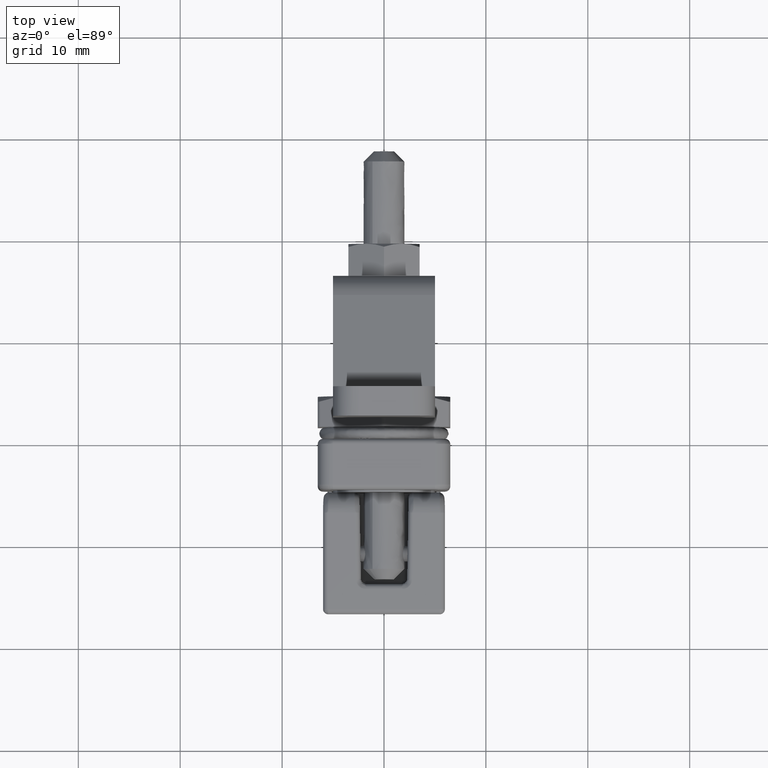
[diagram: clean part render]
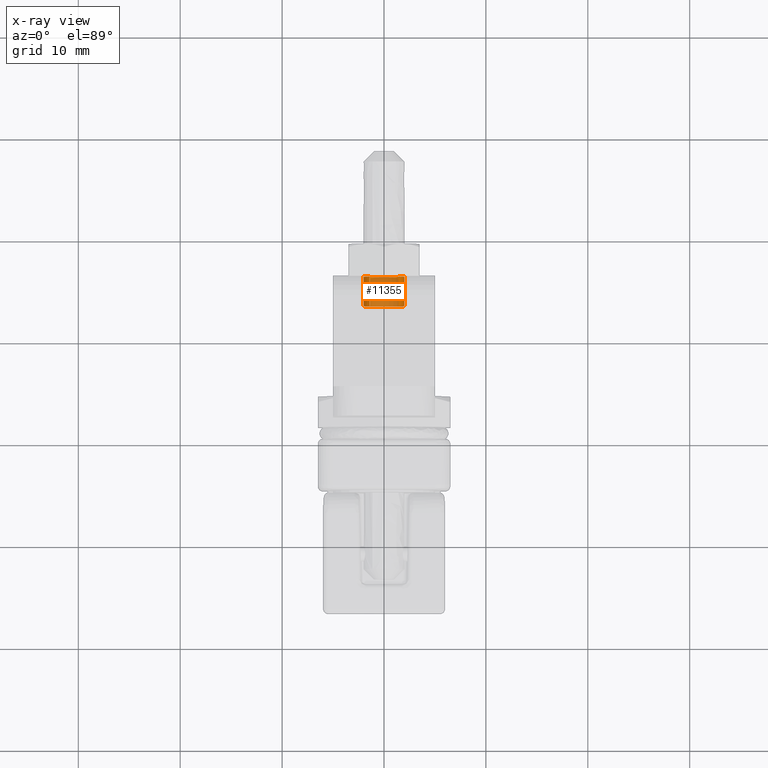
[diagram: x-ray — body ghosted, one internal face saturated and labeled with its STEP entity id]
A machine part, top view, then the same camera in x-ray: the body is ghosted and one INTERNAL B-rep face — a face not visible from any outside direction — is saturated and labeled: STEP entity #11355.
In plain terms, the highlighted face is a freeform B-spline surface patch.
Its self-contained STEP definition (entity closure, byte-faithful):
#11215=CARTESIAN_POINT('',(13.027500000000000,-1.426500898308363,1.401818528599701));
#11216=CARTESIAN_POINT('',(13.027500000000002,-2.828319426908064,-0.024682369708661));
#11217=CARTESIAN_POINT('',(13.027500000000000,-1.401818528599701,-1.426500898308363));
#11218=CARTESIAN_POINT('',(13.027500000000002,0.024682369708661,-2.828319426908064));
#11219=CARTESIAN_POINT('',(13.027500000000000,1.426500898308363,-1.401818528599701));
#11220=CARTESIAN_POINT('',(13.027500000000002,2.828319426908064,0.024682369708661));
#11221=CARTESIAN_POINT('',(13.027500000000000,1.401818528599701,1.426500898308363));
#11222=CARTESIAN_POINT('',(16.074312500000001,-1.426500898308363,1.401818528599701));
#11223=CARTESIAN_POINT('',(16.074312500000005,-2.828319426908064,-0.024682369708661));
#11224=CARTESIAN_POINT('',(16.074312500000001,-1.401818528599701,-1.426500898308363));
#11225=CARTESIAN_POINT('',(16.074312500000005,0.024682369708661,-2.828319426908064));
#11226=CARTESIAN_POINT('',(16.074312500000001,1.426500898308363,-1.401818528599701));
#11227=CARTESIAN_POINT('',(16.074312500000005,2.828319426908064,0.024682369708661));
#11228=CARTESIAN_POINT('',(16.074312500000001,1.401818528599701,1.426500898308363));
#11236=(BOUNDED_SURFACE()B_SPLINE_SURFACE(2,1,((#11215,#11222),(#11216,#11223),(#11217,#11224),(#11218,#11225),(#11219,#11226),(#11220,#11227),(#11221,#11228)),.UNSPECIFIED.,.F.,.F.,.U.)B_SPLINE_SURFACE_WITH_KNOTS((3,2,2,3),(2,2),(0.0,3.313708498984759,6.627416997969519,9.941125496954278),(0.0,3.046812500000000),.UNSPECIFIED.)GEOMETRIC_REPRESENTATION_ITEM()RATIONAL_B_SPLINE_SURFACE(((1.0,1.0),(0.707106781186548,0.707106781186548),(1.0,1.0),(0.707106781186548,0.707106781186548),(1.0,1.0),(0.707106781186548,0.707106781186548),(1.0,1.0)))REPRESENTATION_ITEM('')SURFACE());
#11237=CARTESIAN_POINT('',(16.000000000002579,-1.426500769172210,1.401818420238393));
#11238=VERTEX_POINT('',#11237);
#11239=CARTESIAN_POINT('',(16.0,-1.999999999999887,-0.000000672333795));
#11240=VERTEX_POINT('',#11239);
#11241=CARTESIAN_POINT('',(16.000000000002579,-1.426500769172210,1.401818420238393));
#11242=CARTESIAN_POINT('',(16.000000000002299,-1.585404097723129,1.240337207056326));
#11243=CARTESIAN_POINT('',(16.000000000001609,-1.800463026205957,0.930055607710839));
#11244=CARTESIAN_POINT('',(16.000000000000949,-1.968052744343768,0.436866456071500));
#11245=CARTESIAN_POINT('',(16.000000000000181,-2.000022866075845,0.145626543954628));
#11246=CARTESIAN_POINT('',(16.0,-1.999999999999887,-0.000000672333795));
#11247=B_SPLINE_CURVE_WITH_KNOTS('',3,(#11241,#11242,#11243,#11244,#11245,#11246),.UNSPECIFIED.,.F.,.U.,(4,1,1,4),(0.000000016996273,0.679598382302719,1.116471858167272,1.553353185764703),.UNSPECIFIED.);
#11248=EDGE_CURVE('',#11238,#11240,#11247,.T.);
#11249=ORIENTED_EDGE('',*,*,#11248,.T.);
#11250=CARTESIAN_POINT('',(16.0,0.0,-2.0));
#11251=VERTEX_POINT('',#11250);
#11252=CARTESIAN_POINT('',(16.0,-1.999999999999887,-0.000000672333795));
#11253=CARTESIAN_POINT('',(15.999999999999980,-2.000143673032297,-0.220912004064471));
#11254=CARTESIAN_POINT('',(16.000000000000011,-1.930155841489479,-0.638067199505290));
#11255=CARTESIAN_POINT('',(16.000000000000039,-1.678805584611514,-1.122582565305123));
#11256=CARTESIAN_POINT('',(16.000000000000021,-1.408495669982928,-1.431927698918123));
#11257=CARTESIAN_POINT('',(15.999999999999950,-1.112118959645396,-1.678275714833748));
#11258=CARTESIAN_POINT('',(16.000000000000199,-0.662560328413785,-1.922192523700753));
#11259=CARTESIAN_POINT('',(15.999999999999870,-0.245464684473730,-2.000212313700611));
#11260=CARTESIAN_POINT('',(16.0,0.0,-2.0));
#11261=B_SPLINE_CURVE_WITH_KNOTS('',3,(#11252,#11253,#11254,#11255,#11256,#11257,#11258,#11259,#11260),.UNSPECIFIED.,.F.,.U.,(4,1,1,1,1,1,4),(0.000000070409877,0.662681530878917,1.251749580173070,1.619882883108350,1.889862532158497,2.405297445672642,3.141611986815672),.UNSPECIFIED.);
#11262=EDGE_CURVE('',#11240,#11251,#11261,.T.);
#11263=ORIENTED_EDGE('',*,*,#11262,.T.);
#11264=CARTESIAN_POINT('',(16.0,1.999999999999887,0.000000672333765));
#11265=VERTEX_POINT('',#11264);
#11266=CARTESIAN_POINT('',(16.0,0.0,-2.0));
#11267=CARTESIAN_POINT('',(16.0,0.245455745240337,-2.000197628733698));
#11268=CARTESIAN_POINT('',(16.000000000000028,0.678939706890222,-1.919168533518620));
#11269=CARTESIAN_POINT('',(15.999999999999970,1.183898960884265,-1.637101446319515));
#11270=CARTESIAN_POINT('',(16.000000000000050,1.537432696109711,-1.304590369694624));
#11271=CARTESIAN_POINT('',(15.999999999999909,1.791451840126296,-0.929473310053339));
#11272=CARTESIAN_POINT('',(16.0,1.960626058929634,-0.482672077394008));
#11273=CARTESIAN_POINT('',(16.0,2.000039266833584,-0.163625399530971));
#11274=CARTESIAN_POINT('',(16.0,1.999999999999887,0.000000672333765));
#11275=B_SPLINE_CURVE_WITH_KNOTS('',3,(#11266,#11267,#11268,#11269,#11270,#11271,#11272,#11273,#11274),.UNSPECIFIED.,.F.,.U.,(4,1,1,1,1,1,4),(0.000000070176972,0.736314734101072,1.300836390651637,1.718051043880914,2.184400624882518,2.650743575154988,3.141612744697287),.UNSPECIFIED.);
#11276=EDGE_CURVE('',#11251,#11265,#11275,.T.);
#11277=ORIENTED_EDGE('',*,*,#11276,.T.);
#11278=CARTESIAN_POINT('',(15.999999999997440,1.401818655617519,1.426501009110765));
#11279=VERTEX_POINT('',#11278);
#11280=CARTESIAN_POINT('',(16.0,1.999999999999887,0.000000672333765));
#11281=CARTESIAN_POINT('',(15.999999999999680,2.000028983396292,0.165444824603232));
#11282=CARTESIAN_POINT('',(15.999999999999130,1.956681061120488,0.512868143852997));
#11283=CARTESIAN_POINT('',(15.999999999998090,1.756171236579772,1.008185694085345));
#11284=CARTESIAN_POINT('',(15.999999999997771,1.531658067080497,1.298977538366915));
#11285=CARTESIAN_POINT('',(15.999999999997440,1.401818655617519,1.426501009110765));
#11286=B_SPLINE_CURVE_WITH_KNOTS('',3,(#11280,#11281,#11282,#11283,#11284,#11285),.UNSPECIFIED.,.F.,.U.,(4,1,1,4),(0.000000016812244,0.496333714246515,1.042294230257590,1.588259189020622),.UNSPECIFIED.);
#11287=EDGE_CURVE('',#11265,#11279,#11286,.T.);
#11288=ORIENTED_EDGE('',*,*,#11287,.T.);
#11289=CARTESIAN_POINT('',(13.100000000000000,1.401818420116079,1.426500769292411));
#11290=VERTEX_POINT('',#11289);
#11291=CARTESIAN_POINT('',(13.100000000000000,1.401818420116079,1.426500769292411));
#11292=CARTESIAN_POINT('',(15.999999999997440,1.401818655617519,1.426501009110765));
#11293=QUASI_UNIFORM_CURVE('',1,(#11291,#11292),.UNSPECIFIED.,.F.,.U.);
#11294=EDGE_CURVE('',#11290,#11279,#11293,.T.);
#11295=ORIENTED_EDGE('',*,*,#11294,.F.);
#11296=CARTESIAN_POINT('',(13.100000000000000,1.999999999999887,-0.000000672333795));
#11297=VERTEX_POINT('',#11296);
#11298=CARTESIAN_POINT('',(13.100000000000000,1.401818420116079,1.426500769292411));
#11299=CARTESIAN_POINT('',(13.099999999999980,1.513937529640625,1.316357152605218));
#11300=CARTESIAN_POINT('',(13.100000000000010,1.732908378103567,1.043488906747755));
#11301=CARTESIAN_POINT('',(13.100000000000049,1.948878116148171,0.554225755739887));
#11302=CARTESIAN_POINT('',(13.099999999999980,2.000054371935124,0.181988649523127));
#11303=CARTESIAN_POINT('',(13.100000000000000,1.999999999999887,-0.000000672333795));
#11304=B_SPLINE_CURVE_WITH_KNOTS('',3,(#11298,#11299,#11300,#11301,#11302,#11303),.UNSPECIFIED.,.F.,.U.,(4,1,1,4),(0.000000016812348,0.471515403425921,1.042295025049464,1.588260400134897),.UNSPECIFIED.);
#11305=EDGE_CURVE('',#11290,#11297,#11304,.T.);
#11306=ORIENTED_EDGE('',*,*,#11305,.T.);
#11307=CARTESIAN_POINT('',(13.100000000000000,0.0,-2.0));
#11308=VERTEX_POINT('',#11307);
#11309=CARTESIAN_POINT('',(13.100000000000000,1.999999999999887,-0.000000672333795));
#11310=CARTESIAN_POINT('',(13.099999999999991,2.000016806321604,-0.130900566229163));
#11311=CARTESIAN_POINT('',(13.100000000000000,1.974198166846866,-0.392688113829381));
#11312=CARTESIAN_POINT('',(13.100000000000030,1.843026655126116,-0.825406861997967));
#11313=CARTESIAN_POINT('',(13.099999999999991,1.624376552919879,-1.195258857025800));
#11314=CARTESIAN_POINT('',(13.099999999999961,1.303868734914195,-1.536062404829850));
#11315=CARTESIAN_POINT('',(13.100000000000120,0.978749688462506,-1.762059873741599));
#11316=CARTESIAN_POINT('',(13.099999999999930,0.523535878713051,-1.950600983268808));
#11317=CARTESIAN_POINT('',(13.100000000000049,0.204546686014884,-2.000100638064749));
#11318=CARTESIAN_POINT('',(13.100000000000000,0.0,-2.0));
#11319=B_SPLINE_CURVE_WITH_KNOTS('',3,(#11309,#11310,#11311,#11312,#11313,#11314,#11315,#11316,#11317,#11318),.UNSPECIFIED.,.F.,.U.,(4,1,1,1,1,1,1,4),(0.000000070409877,0.392698663157498,0.785403048609139,1.349919825192309,1.668964744903232,2.184400097588170,2.528017916751864,3.141611986815672),.UNSPECIFIED.);
#11320=EDGE_CURVE('',#11297,#11308,#11319,.T.);
#11321=ORIENTED_EDGE('',*,*,#11320,.T.);
#11322=CARTESIAN_POINT('',(13.100000000000000,-1.999999999999887,0.000000672333765));
#11323=VERTEX_POINT('',#11322);
#11324=CARTESIAN_POINT('',(13.100000000000000,0.0,-2.0));
#11325=CARTESIAN_POINT('',(13.100000000000019,-0.163626594308032,-2.000040057797708));
#11326=CARTESIAN_POINT('',(13.099999999999991,-0.482671812342471,-1.960623908346763));
#11327=CARTESIAN_POINT('',(13.100000000000010,-0.921767553113355,-1.794371113205212));
#11328=CARTESIAN_POINT('',(13.099999999999991,-1.250254392626510,-1.574834522608596));
#11329=CARTESIAN_POINT('',(13.099999999999991,-1.515932918145592,-1.318762696975900));
#11330=CARTESIAN_POINT('',(13.100000000000030,-1.721610408687138,-1.041442030622013));
#11331=CARTESIAN_POINT('',(13.099999999999890,-1.935147517690733,-0.597116371966968));
#11332=CARTESIAN_POINT('',(13.100000000000099,-2.000206793362889,-0.237288704996118));
#11333=CARTESIAN_POINT('',(13.100000000000000,-1.999999999999887,0.000000672333765));
#11334=B_SPLINE_CURVE_WITH_KNOTS('',3,(#11324,#11325,#11326,#11327,#11328,#11329,#11330,#11331,#11332,#11333),.UNSPECIFIED.,.F.,.U.,(4,1,1,1,1,1,1,4),(0.000000070176972,0.490869562193530,0.957212382186459,1.399000426634038,1.668965148239515,2.061675576697325,2.429843026724901,3.141612744697287),.UNSPECIFIED.);
#11335=EDGE_CURVE('',#11308,#11323,#11334,.T.);
#11336=ORIENTED_EDGE('',*,*,#11335,.T.);
#11337=CARTESIAN_POINT('',(13.100000000000000,-1.426501009223800,1.401818655502491));
#11338=VERTEX_POINT('',#11337);
#11339=CARTESIAN_POINT('',(13.100000000000000,-1.999999999999887,0.000000672333765));
#11340=CARTESIAN_POINT('',(13.100000000000030,-2.000022383496233,0.153715905358274));
#11341=CARTESIAN_POINT('',(13.099999999999939,-1.959744413237403,0.501609975473520));
#11342=CARTESIAN_POINT('',(13.100000000000110,-1.767523032057804,0.988295370655974));
#11343=CARTESIAN_POINT('',(13.099999999999980,-1.545605118785576,1.280663282459815));
#11344=CARTESIAN_POINT('',(13.100000000000000,-1.426501009223800,1.401818655502491));
#11345=B_SPLINE_CURVE_WITH_KNOTS('',3,(#11339,#11340,#11341,#11342,#11343,#11344),.UNSPECIFIED.,.F.,.U.,(4,1,1,4),(0.000000016996187,0.461153100314642,1.043656277956555,1.553351971146765),.UNSPECIFIED.);
#11346=EDGE_CURVE('',#11323,#11338,#11345,.T.);
#11347=ORIENTED_EDGE('',*,*,#11346,.T.);
#11348=CARTESIAN_POINT('',(13.100000000000000,-1.426501009223800,1.401818655502491));
#11349=CARTESIAN_POINT('',(16.000000000002579,-1.426500769172210,1.401818420238393));
#11350=QUASI_UNIFORM_CURVE('',1,(#11348,#11349),.UNSPECIFIED.,.F.,.U.);
#11351=EDGE_CURVE('',#11338,#11238,#11350,.T.);
#11352=ORIENTED_EDGE('',*,*,#11351,.T.);
#11353=EDGE_LOOP('',(#11249,#11263,#11277,#11288,#11295,#11306,#11321,#11336,#11347,#11352));
#11354=FACE_OUTER_BOUND('',#11353,.T.);
#11355=ADVANCED_FACE('',(#11354),#11236,.F.);